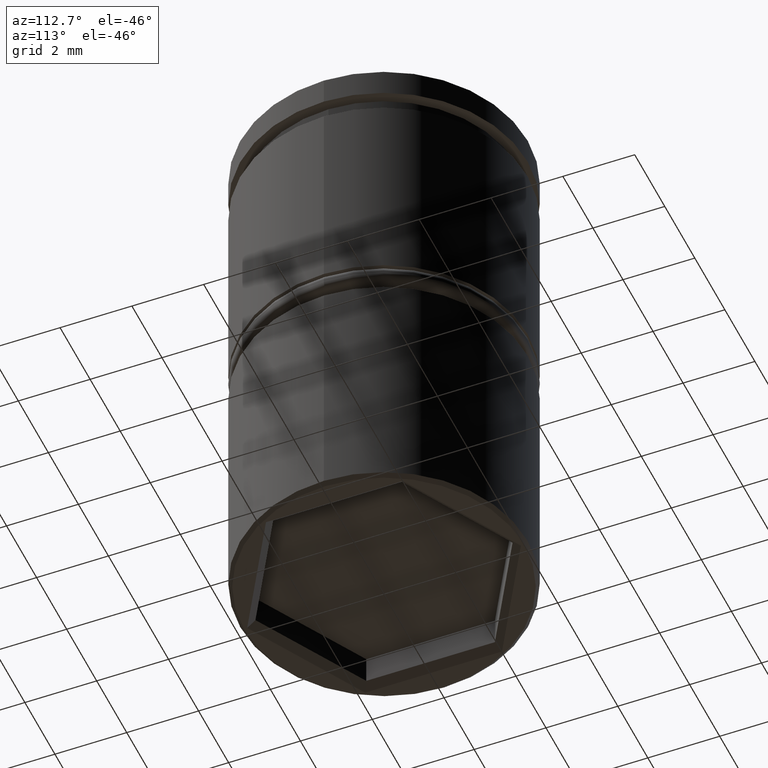
[diagram: clean part render]
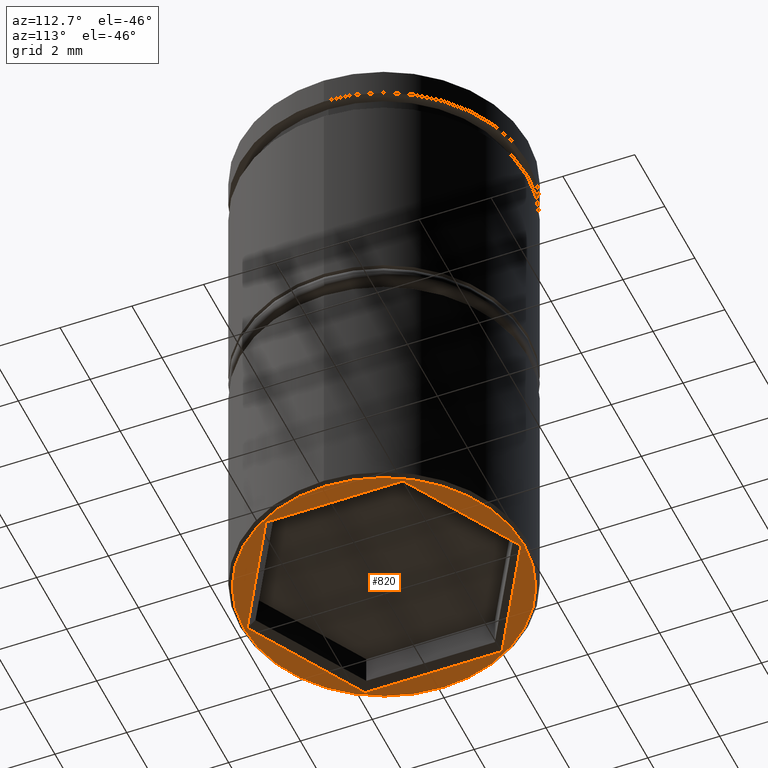
[diagram: same view with one face highlighted and labeled with its STEP entity id]
A machine part, auxiliary view. The second image highlights one B-rep face of the part: STEP entity #820.
In plain terms, the highlighted planar face has unit normal (0, 0, -1).
Its self-contained STEP definition (entity closure, byte-faithful):
#14 = CARTESIAN_POINT ( 'NONE',  ( 0.1000000000000010741, 3.752776749732571471, -15.00000000000000000 ) ) ;
#71 = EDGE_CURVE ( 'NONE', #438, #289, #446, .T. ) ;
#79 = ORIENTED_EDGE ( 'NONE', *, *, #558, .T. ) ;
#82 = VECTOR ( 'NONE', #813, 1000.000000000000114 ) ;
#84 = EDGE_CURVE ( 'NONE', #725, #1091, #204, .T. ) ;
#105 = CARTESIAN_POINT ( 'NONE',  ( -3.300000000000005151, -1.905255888325767311, -15.00000000000000000 ) ) ;
#108 = DIRECTION ( 'NONE',  ( 0.000000000000000000, 0.000000000000000000, -1.000000000000000000 ) ) ;
#113 = CARTESIAN_POINT ( 'NONE',  ( -3.900000000000002576, 4.837354856632047030E-16, -15.00000000000000000 ) ) ;
#149 = EDGE_CURVE ( 'NONE', #164, #450, #440, .T. ) ;
#158 = VECTOR ( 'NONE', #814, 1000.000000000000000 ) ;
#164 = VERTEX_POINT ( 'NONE', #1148 ) ;
#172 = ORIENTED_EDGE ( 'NONE', *, *, #279, .T. ) ;
#174 = VECTOR ( 'NONE', #496, 1000.000000000000114 ) ;
#189 = CARTESIAN_POINT ( 'NONE',  ( 3.200000000000004174, -1.962990915244732015, -15.00000000000000000 ) ) ;
#193 = DIRECTION ( 'NONE',  ( -1.000000000000000000, 0.000000000000000000, -0.000000000000000000 ) ) ;
#204 = LINE ( 'NONE', #940, #174 ) ;
#213 = DIRECTION ( 'NONE',  ( 0.000000000000000000, -1.000000000000000000, 0.000000000000000000 ) ) ;
#215 = CARTESIAN_POINT ( 'NONE',  ( 0.000000000000000000, 4.000000000000000000, -15.00000000000000000 ) ) ;
#235 = ORIENTED_EDGE ( 'NONE', *, *, #84, .T. ) ;
#238 = EDGE_CURVE ( 'NONE', #289, #438, #328, .T. ) ;
#265 = CARTESIAN_POINT ( 'NONE',  ( -3.300000000000005151, 1.905255888325767977, -15.00000000000000000 ) ) ;
#279 = EDGE_CURVE ( 'NONE', #1091, #691, #1116, .T. ) ;
#289 = VERTEX_POINT ( 'NONE', #778 ) ;
#303 = PLANE ( 'NONE',  #584 ) ;
#327 = ORIENTED_EDGE ( 'NONE', *, *, #643, .T. ) ;
#328 = CIRCLE ( 'NONE', #989, 3.900000000000002576 ) ;
#348 = VERTEX_POINT ( 'NONE', #947 ) ;
#351 = DIRECTION ( 'NONE',  ( -0.8660254037844385966, 0.5000000000000001110, 0.000000000000000000 ) ) ;
#383 = FACE_OUTER_BOUND ( 'NONE', #816, .T. ) ;
#385 = CARTESIAN_POINT ( 'NONE',  ( 0.000000000000000000, 0.000000000000000000, -15.00000000000000000 ) ) ;
#409 = CARTESIAN_POINT ( 'NONE',  ( -3.300000000000005151, -1.789785834487841232, -15.00000000000000000 ) ) ;
#438 = VERTEX_POINT ( 'NONE', #113 ) ;
#440 = LINE ( 'NONE', #806, #158 ) ;
#446 = CIRCLE ( 'NONE', #1163, 3.900000000000002576 ) ;
#450 = VERTEX_POINT ( 'NONE', #777 ) ;
#457 = LINE ( 'NONE', #1087, #1050 ) ;
#459 = LINE ( 'NONE', #189, #82 ) ;
#488 = CARTESIAN_POINT ( 'NONE',  ( -1.006555226899329040E-16, 3.810511776651534621, -15.00000000000000000 ) ) ;
#496 = DIRECTION ( 'NONE',  ( -0.8660254037844388186, -0.4999999999999997780, 0.000000000000000000 ) ) ;
#552 = DIRECTION ( 'NONE',  ( 0.000000000000000000, 0.000000000000000000, -1.000000000000000000 ) ) ;
#558 = EDGE_CURVE ( 'NONE', #348, #164, #459, .T. ) ;
#582 = VECTOR ( 'NONE', #351, 1000.000000000000114 ) ;
#584 = AXIS2_PLACEMENT_3D ( 'NONE', #215, #660, #193 ) ;
#597 = ORIENTED_EDGE ( 'NONE', *, *, #1170, .T. ) ;
#642 = DIRECTION ( 'NONE',  ( -1.000000000000000000, 0.000000000000000000, 0.000000000000000000 ) ) ;
#643 = EDGE_CURVE ( 'NONE', #450, #725, #828, .T. ) ;
#660 = DIRECTION ( 'NONE',  ( 0.000000000000000000, 0.000000000000000000, -1.000000000000000000 ) ) ;
#691 = VERTEX_POINT ( 'NONE', #105 ) ;
#707 = VECTOR ( 'NONE', #213, 1000.000000000000000 ) ;
#725 = VERTEX_POINT ( 'NONE', #488 ) ;
#777 = CARTESIAN_POINT ( 'NONE',  ( 3.300000000000005151, 1.905255888325766200, -15.00000000000000000 ) ) ;
#778 = CARTESIAN_POINT ( 'NONE',  ( 3.900000000000002576, 0.000000000000000000, -15.00000000000000000 ) ) ;
#802 = ORIENTED_EDGE ( 'NONE', *, *, #238, .T. ) ;
#806 = CARTESIAN_POINT ( 'NONE',  ( 3.300000000000005151, 1.789785834487839900, -15.00000000000000000 ) ) ;
#813 = DIRECTION ( 'NONE',  ( 0.8660254037844385966, 0.4999999999999999445, 0.000000000000000000 ) ) ;
#814 = DIRECTION ( 'NONE',  ( 1.211544031239644006E-16, 1.000000000000000000, 0.000000000000000000 ) ) ;
#816 = EDGE_LOOP ( 'NONE', ( #802, #1061 ) ) ;
#820 = ADVANCED_FACE ( 'NONE', ( #1006, #383 ), #303, .T. ) ;
#828 = LINE ( 'NONE', #14, #582 ) ;
#940 = CARTESIAN_POINT ( 'NONE',  ( -3.200000000000004174, 1.962990915244731127, -15.00000000000000000 ) ) ;
#947 = CARTESIAN_POINT ( 'NONE',  ( 4.221695743586859547E-16, -3.810511776651536398, -15.00000000000000000 ) ) ;
#989 = AXIS2_PLACEMENT_3D ( 'NONE', #1056, #552, #642 ) ;
#1006 = FACE_BOUND ( 'NONE', #1096, .T. ) ;
#1041 = ORIENTED_EDGE ( 'NONE', *, *, #149, .T. ) ;
#1050 = VECTOR ( 'NONE', #1095, 999.9999999999998863 ) ;
#1056 = CARTESIAN_POINT ( 'NONE',  ( 0.000000000000000000, 0.000000000000000000, -15.00000000000000000 ) ) ;
#1061 = ORIENTED_EDGE ( 'NONE', *, *, #71, .T. ) ;
#1087 = CARTESIAN_POINT ( 'NONE',  ( -0.1000000000000017680, -3.752776749732572803, -15.00000000000000000 ) ) ;
#1091 = VERTEX_POINT ( 'NONE', #265 ) ;
#1095 = DIRECTION ( 'NONE',  ( 0.8660254037844385966, -0.5000000000000002220, 0.000000000000000000 ) ) ;
#1096 = EDGE_LOOP ( 'NONE', ( #597, #79, #1041, #327, #235, #172 ) ) ;
#1102 = DIRECTION ( 'NONE',  ( -1.000000000000000000, 0.000000000000000000, 0.000000000000000000 ) ) ;
#1116 = LINE ( 'NONE', #409, #707 ) ;
#1148 = CARTESIAN_POINT ( 'NONE',  ( 3.300000000000004707, -1.905255888325769087, -15.00000000000000000 ) ) ;
#1163 = AXIS2_PLACEMENT_3D ( 'NONE', #385, #108, #1102 ) ;
#1170 = EDGE_CURVE ( 'NONE', #691, #348, #457, .T. ) ;